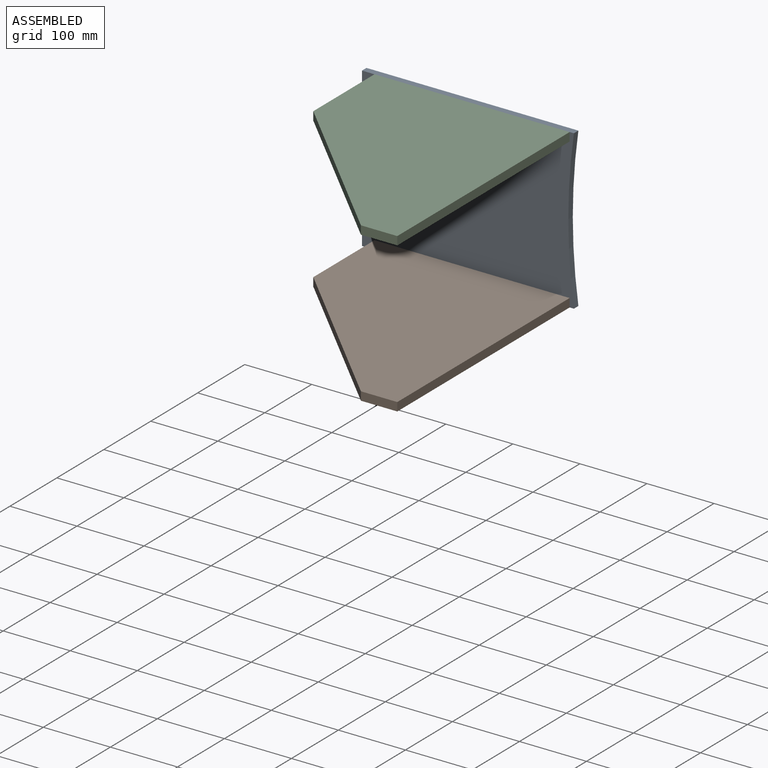
[diagram: assembled view]
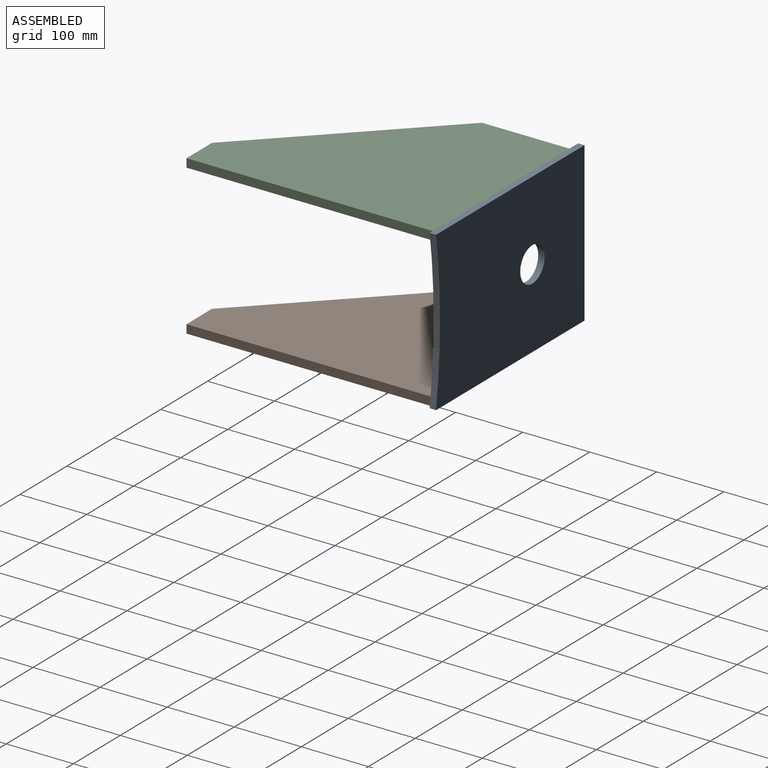
[diagram: assembled view, second angle]
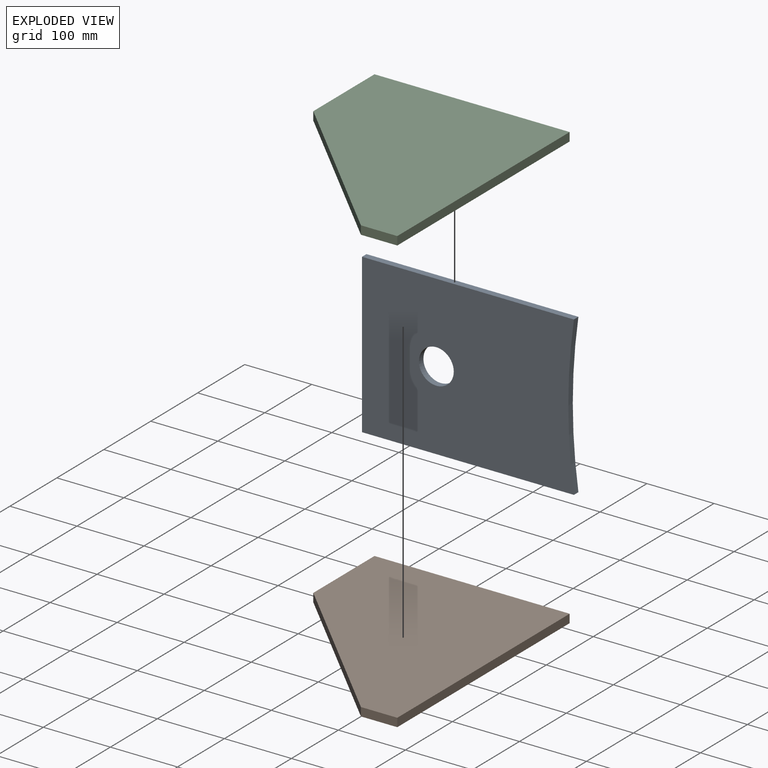
[diagram: exploded view]
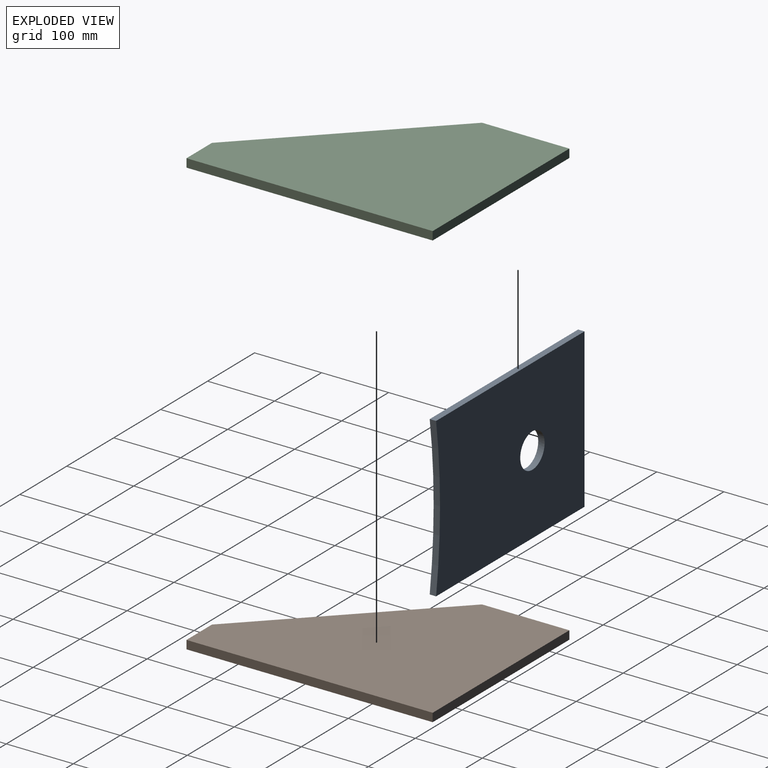
[diagram: exploded view, second angle]
ASSEMBLY  parts=3 mates=2
PART A: 7 faces, bbox 316.1x9.5x236.4 mm
  f0: cylinder r=25.98mm len=51.97mm, axis (0,-1,0), area 1555.1mm2, adj f5,f6
  f1: plane 316.1x9.53mm, normal (0,0,1), area 3010.9mm2, adj f2,f4,f5,f6
  f2: plane 236.44x9.53mm, normal (1,0,0), area 2252.1mm2, adj f1,f3,f5,f6
  f3: plane 316.1x9.53mm, normal (0,0,-1), area 3010.9mm2, adj f2,f4,f5,f6
  f4: cylinder r=838.2mm len=236.44mm, axis (0,-1,0), area 2259.6mm2, adj f1,f3,f5,f6
  f5: plane 316.1x236.44mm, normal (0,-1,0), area 71296.4mm2, adj f0,f1,f2,f3,f4
  f6: plane 316.1x236.44mm, normal (0,1,0), area 71296.4mm2, adj f0,f1,f2,f3,f4
PART B: 7 faces, bbox 291.1x367.2x12.7 mm
  f0: plane 367.18x12.7mm, normal (-1,0,0), area 4663.1mm2, adj f1,f4,f5,f6
  f1: plane 54.24x12.7mm, normal (0,-1,0), area 688.8mm2, adj f0,f2,f5,f6
  f2: plane 236.9x236.9mm, normal (0.71,-0.71,0), area 4254.8mm2, adj f1,f3,f5,f6
  f3: plane 130.28x12.7mm, normal (1,0,0), area 1654.5mm2, adj f2,f4,f5,f6
  f4: plane 291.14x12.7mm, normal (0,1,0), area 3697.4mm2, adj f0,f3,f5,f6
  f5: plane 367.18x291.14mm, normal (0,0,1), area 78837.5mm2, adj f0,f1,f2,f3,f4
  f6: plane 367.18x291.14mm, normal (0,0,-1), area 78837.5mm2, adj f0,f1,f2,f3,f4
PART C: same geometry as B
PLACE A rot(axis=(0,-1,0),180deg) t=(0,-914.4,0)mm
PLACE B rot(axis=(0,-1,0),180deg) t=(-13.36,-914.4,-281.41)mm
PLACE C rot(axis=(0,-1,0),180deg) t=(-13.36,-914.4,-57.67)mm
MATE fastened C.f6 <-> A.f3  axis (0,0,1) through (-835.76,1500.93,118.22)mm
MATE fastened B.f5 <-> A.f1  axis (0,0,-1) through (-835.76,1500.93,-118.22)mm
